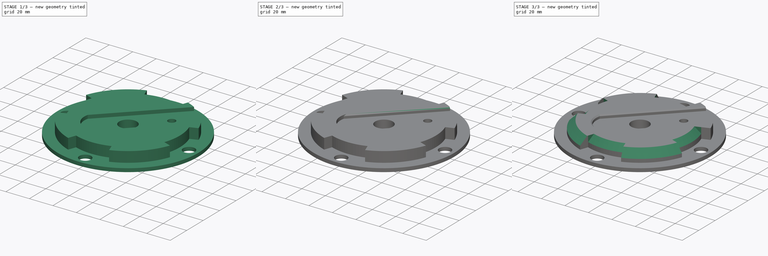
[diagram: build sequence overview — one tinted view per stage of 3, left to right]
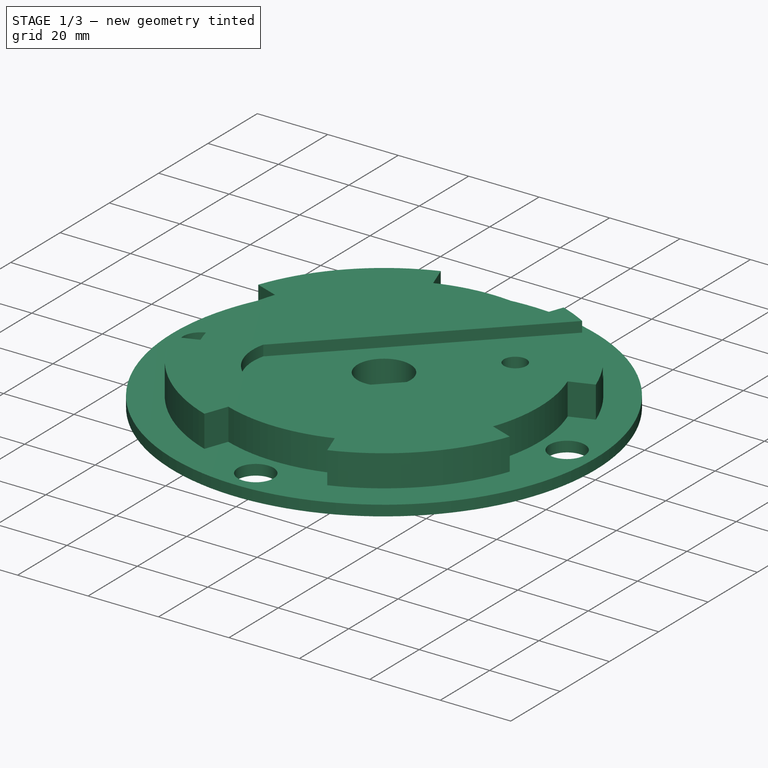
[diagram: stage 1 of 3 — iso view after this stage's code; geometry added in this stage tinted green]
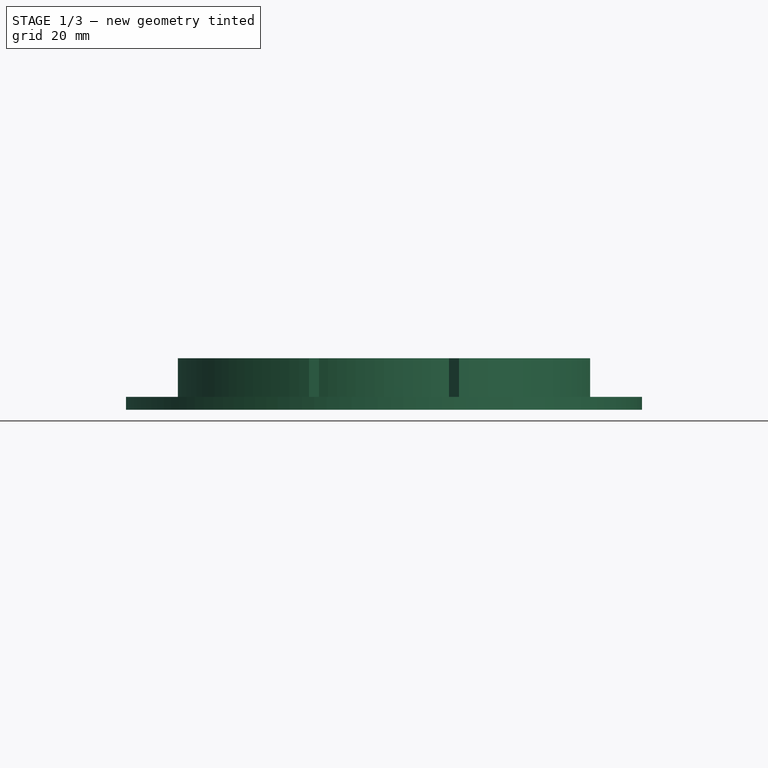
[diagram: stage 1 of 3 — front view after this stage's code; geometry added in this stage tinted green]
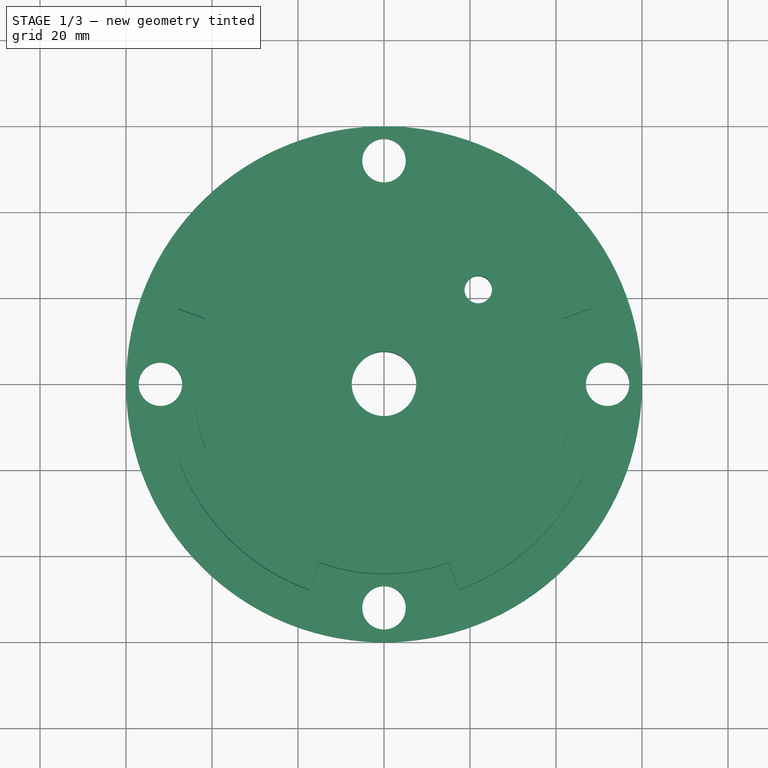
[diagram: stage 1 of 3 — top view after this stage's code; geometry added in this stage tinted green]
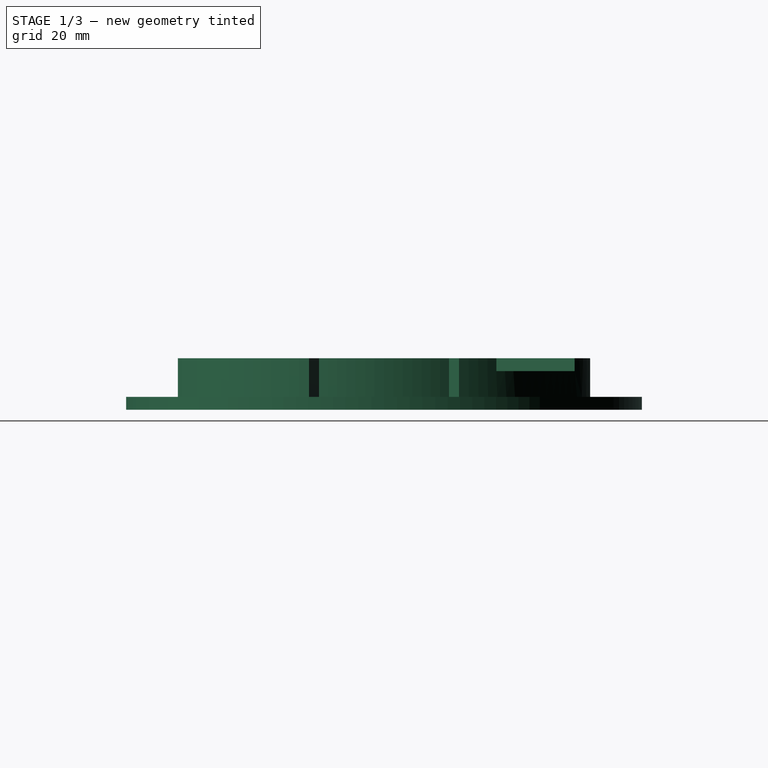
[diagram: stage 1 of 3 — right view after this stage's code; geometry added in this stage tinted green]
FCSTD DOCUMENT  (FreeCAD 0.16R)
Label: 104BCDspider_01
License: All rights reserved
LicenseURL: http://en.wikipedia.org/wiki/All_rights_reserved
objects: PartDesign::Chamfer×5, Sketcher::SketchObject×3, PartDesign::Pocket×2, PartDesign::Pad×1
note: 14 computed .brp shape members not serialized (recipe doc carries the construction recipe); baked Part::Feature solids carry a one-line shape summary decoded from their .brp

FEATURE [Sketcher::SketchObject] Sketch
  sketch-geometry (9):
    g0: Circle [constr] CenterX=0 CenterY=0 CenterZ=0 NormalX=0 NormalY=0 NormalZ=1 Radius=52
    g1: Circle CenterX=0 CenterY=0 CenterZ=0 NormalX=0 NormalY=0 NormalZ=1 Radius=7.5
    g2: Circle CenterX=21.9203 CenterY=21.9203 CenterZ=0 NormalX=0 NormalY=0 NormalZ=1 Radius=3.2
    g3: Circle CenterX=0 CenterY=0 CenterZ=0 NormalX=0 NormalY=0 NormalZ=1 Radius=60
    g4: Circle CenterX=-52 CenterY=0 CenterZ=0 NormalX=0 NormalY=0 NormalZ=1 Radius=5.05
    g5: Circle CenterX=52 CenterY=0 CenterZ=0 NormalX=0 NormalY=0 NormalZ=1 Radius=5.05
    g6: Circle CenterX=0 CenterY=52 CenterZ=0 NormalX=0 NormalY=0 NormalZ=1 Radius=5.05
    g7: Circle CenterX=0 CenterY=-52 CenterZ=0 NormalX=0 NormalY=0 NormalZ=1 Radius=5.05
    g8: LineSegment [constr] StartX=0 StartY=0 StartZ=0 EndX=60.5216 EndY=60.5216 EndZ=0
  constraints (23):
    c: Coincident(g1,g-1)
    c: Coincident(g0,g-1)
    c: Radius(g0) = 52
    c: Radius(g1) = 7.5
    c: Radius(g2) = 3.2
    c: Coincident(g3,g-1)
    c: Radius(g3) = 60
    c: PointOnObject(g5,g-1)
    c: PointOnObject(g4,g-1)
    c: PointOnObject(g7,g-2)
    c: PointOnObject(g6,g-2)
    c: Radius(g7) = 5.05
    c: Equal(g7,g6)
    c: Equal(g7,g5)
    c: Equal(g7,g4)
    c: DistanceY(g7) = -52
    c: DistanceX(g5) = 52
    c: DistanceY(g6) = 52
    c: DistanceX(g4) = -52
    c: Distance(g-1,g2) = 31
    c: Coincident(g8,g-1)
    c: Angle(g8) = 0.785398
    c: PointOnObject(g2,g8)
FEATURE [PartDesign::Pad] Pad
  Length = 12
  Length2 = 100
  Sketch = -> Sketch
  Type = 0
FEATURE [Sketcher::SketchObject] Sketch001
  Placement = pos=(0,0,12) rot=(0,0,1;0rad)
  Support = -> Pad [Face9]
  sketch-geometry (17):
    g0: ArcOfCircle CenterX=0 CenterY=0 CenterZ=0 NormalX=0 NormalY=0 NormalZ=1 Radius=44.2 StartAngle=2.79253 EndAngle=3.49066
    g1: Circle CenterX=0 CenterY=0 CenterZ=0 NormalX=0 NormalY=0 NormalZ=1 Radius=70
    g2: ArcOfCircle CenterX=0 CenterY=0 CenterZ=0 NormalX=0 NormalY=0 NormalZ=1 Radius=51 StartAngle=1.91986 EndAngle=2.79253
    g3: LineSegment StartX=15.1173 StartY=41.5344 StartZ=0 EndX=17.443 EndY=47.9243 EndZ=0
    g4: LineSegment StartX=41.5344 StartY=15.1173 StartZ=0 EndX=47.9243 EndY=17.443 EndZ=0
    g5: LineSegment StartX=41.5344 StartY=-15.1173 StartZ=0 EndX=47.9243 EndY=-17.443 EndZ=0
    g6: LineSegment StartX=15.1173 StartY=-41.5344 StartZ=0 EndX=17.443 EndY=-47.9243 EndZ=0
    g7: LineSegment StartX=-15.1173 StartY=-41.5344 StartZ=0 EndX=-17.443 EndY=-47.9243 EndZ=0
    g8: LineSegment StartX=-41.5344 StartY=-15.1173 StartZ=0 EndX=-47.9243 EndY=-17.443 EndZ=0
    g9: LineSegment StartX=-41.5344 StartY=15.1173 StartZ=0 EndX=-47.9243 EndY=17.443 EndZ=0
    g10: LineSegment StartX=-15.1173 StartY=41.5344 StartZ=0 EndX=-17.443 EndY=47.9243 EndZ=0
    g11: ArcOfCircle CenterX=0 CenterY=0 CenterZ=0 NormalX=0 NormalY=0 NormalZ=1 Radius=51 StartAngle=0.349066 EndAngle=1.22173
    g12: ArcOfCircle CenterX=0 CenterY=0 CenterZ=0 NormalX=0 NormalY=0 NormalZ=1 Radius=51 StartAngle=5.06145 EndAngle=5.93412
    g13: ArcOfCircle CenterX=0 CenterY=0 CenterZ=0 NormalX=0 NormalY=0 NormalZ=1 Radius=51 StartAngle=3.49066 EndAngle=4.36332
    g14: ArcOfCircle CenterX=0 CenterY=0 CenterZ=0 NormalX=0 NormalY=0 NormalZ=1 Radius=44.2 StartAngle=1.22173 EndAngle=1.91986
    g15: ArcOfCircle CenterX=0 CenterY=0 CenterZ=0 NormalX=0 NormalY=0 NormalZ=1 Radius=44.2 StartAngle=5.93412 EndAngle=6.63225
    g16: ArcOfCircle CenterX=0 CenterY=0 CenterZ=0 NormalX=0 NormalY=0 NormalZ=1 Radius=44.2 StartAngle=4.36332 EndAngle=5.06145
  constraints (42):
    c: Coincident(g-1,g0)
    c: Radius(g0) = 44.2
    c: Coincident(g-1,g1)
    c: Radius(g1) = 70
    c: Coincident(g2,g-1)
    c: Radius(g2) = 51
    c: Angle(g3) = 1.22173
    c: Angle(g4) = 0.349066
    c: Angle(g5) = -0.349066
    c: Angle(g6) = -1.22173
    c: Angle(g7) = -1.91986
    c: Angle(g8) = -2.79253
    c: Angle(g9) = 2.79253
    c: Angle(g10) = 1.91986
    c: Equal(g2,g11)
    c: Coincident(g2,g11)
    c: Equal(g2,g12)
    c: Coincident(g2,g12)
    c: Equal(g2,g13)
    c: Coincident(g2,g13)
    c: Equal(g0,g14)
    c: Coincident(g0,g14)
    c: Equal(g0,g15)
    c: Coincident(g0,g15)
    c: Equal(g0,g16)
    c: Coincident(g0,g16)
    c: Coincident(g10,g14)
    c: Coincident(g3,g14)
    c: Coincident(g4,g15)
    c: Coincident(g5,g15)
    c: Coincident(g6,g16)
    c: Coincident(g9,g0)
    c: Coincident(g8,g0)
    c: Coincident(g7,g16)
    c: Coincident(g3,g11)
    c: Coincident(g10,g2)
    c: Coincident(g9,g2)
    c: Coincident(g8,g13)
    c: Coincident(g7,g13)
    c: Coincident(g6,g12)
    c: Coincident(g5,g12)
    c: Coincident(g4,g11)
FEATURE [PartDesign::Pocket] Pocket
  Length = 9
  Sketch = -> Sketch001
  Type = 0
FEATURE [Sketcher::SketchObject] Sketch002
  ExternalGeometry = -> [Pocket]
  Placement = pos=(0,0,12) rot=(0,0,1;0rad)
  Support = -> Pocket [Face26]
  sketch-geometry (4):
    g0: LineSegment StartX=-10.0068 StartY=-27.6845 StartZ=0 EndX=68.1341 EndY=50.4564 EndZ=0
    g1: LineSegment StartX=68.1341 StartY=50.4564 StartZ=0 EndX=49.7499 EndY=68.8405 EndZ=0
    g2: LineSegment StartX=49.7499 StartY=68.8405 StartZ=0 EndX=-28.0318 EndY=-8.94122 EndZ=0
    g3: ArcOfCircle CenterX=-12.9629 CenterY=-12.4885 CenterZ=0 NormalX=0 NormalY=0 NormalZ=1 Radius=15.4808 StartAngle=2.9104 EndAngle=4.90452
  constraints (10):
    c: Coincident(g0,g1)
    c: Coincident(g1,g2)
    c: Parallel(g2,g0)
    c: Perpendicular(g2,g1)
    c: Distance(g2) = 110
    c: Distance(g-1,g0) = 12.5
    c: Distance(g-3,g0) = 12.5
    c: Coincident(g3,g0)
    c: Coincident(g3,g2)
    c: Distance(g-1,g3) = 18
FEATURE [PartDesign::Pocket] Pocket001
  Length = 3
  Sketch = -> Sketch002
  Type = 0
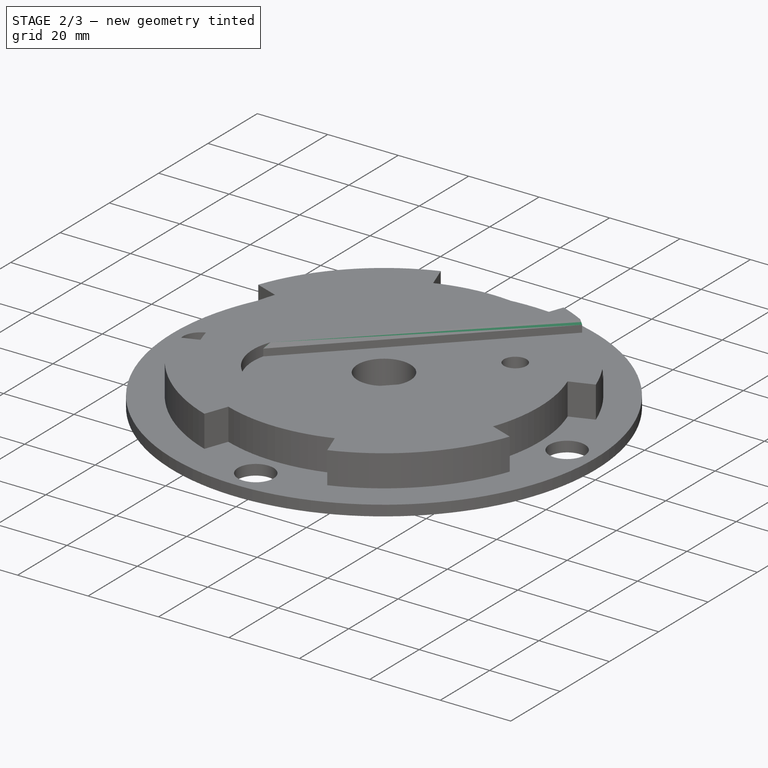
[diagram: stage 2 of 3 — iso view after this stage's code; geometry added in this stage tinted green]
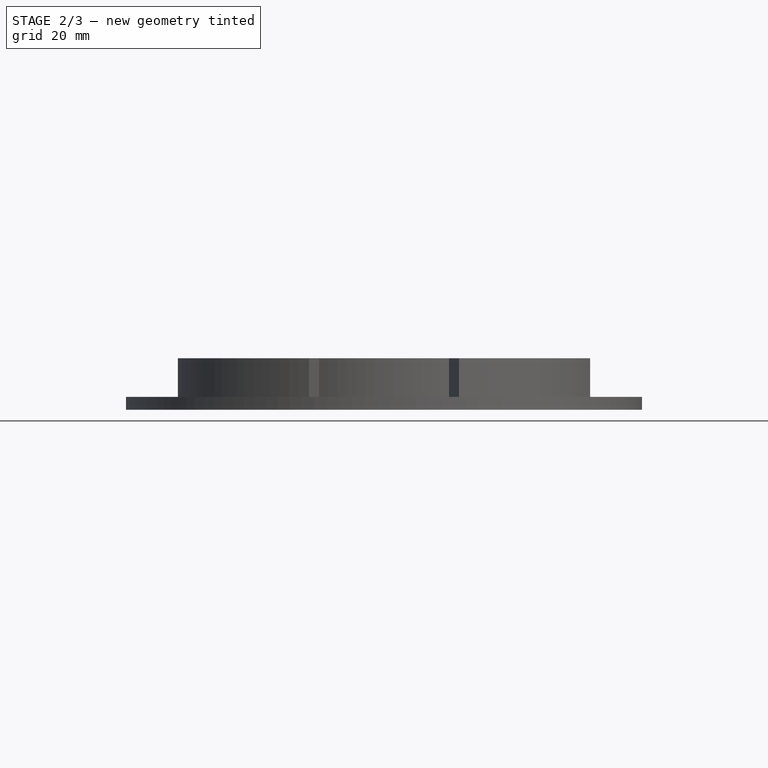
[diagram: stage 2 of 3 — front view after this stage's code; geometry added in this stage tinted green]
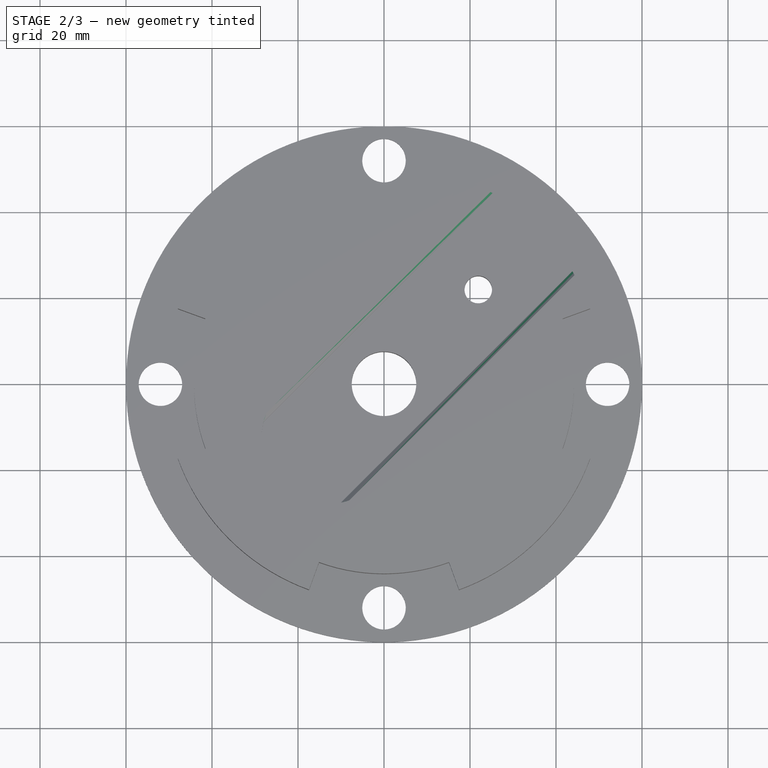
[diagram: stage 2 of 3 — top view after this stage's code; geometry added in this stage tinted green]
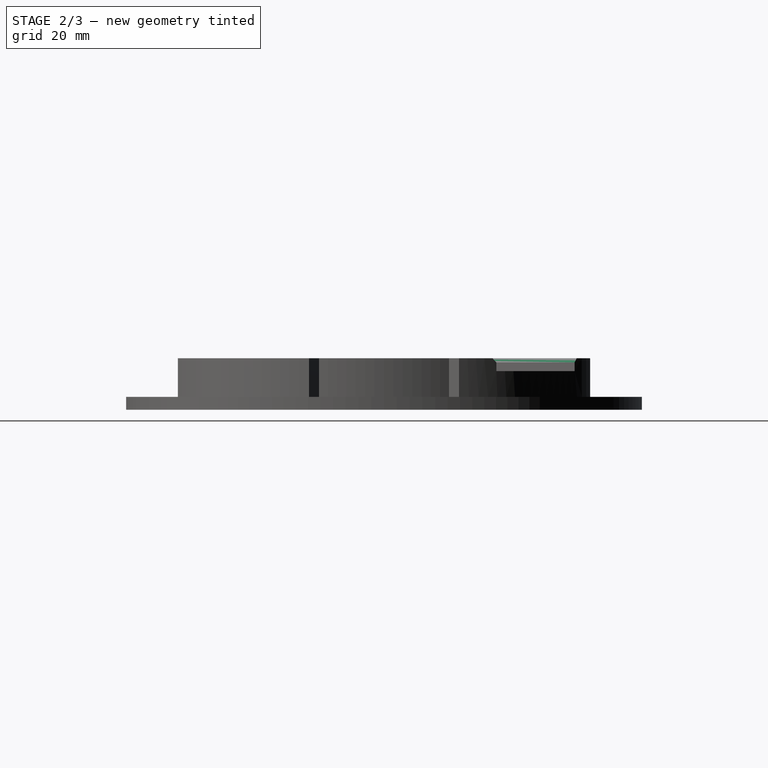
[diagram: stage 2 of 3 — right view after this stage's code; geometry added in this stage tinted green]
FEATURE [PartDesign::Chamfer] Chamfer
  Base = -> Pocket001 [Edge79]
  Size = 1
FEATURE [PartDesign::Chamfer] Chamfer001
  Base = -> Chamfer [Edge16]
  Size = 1
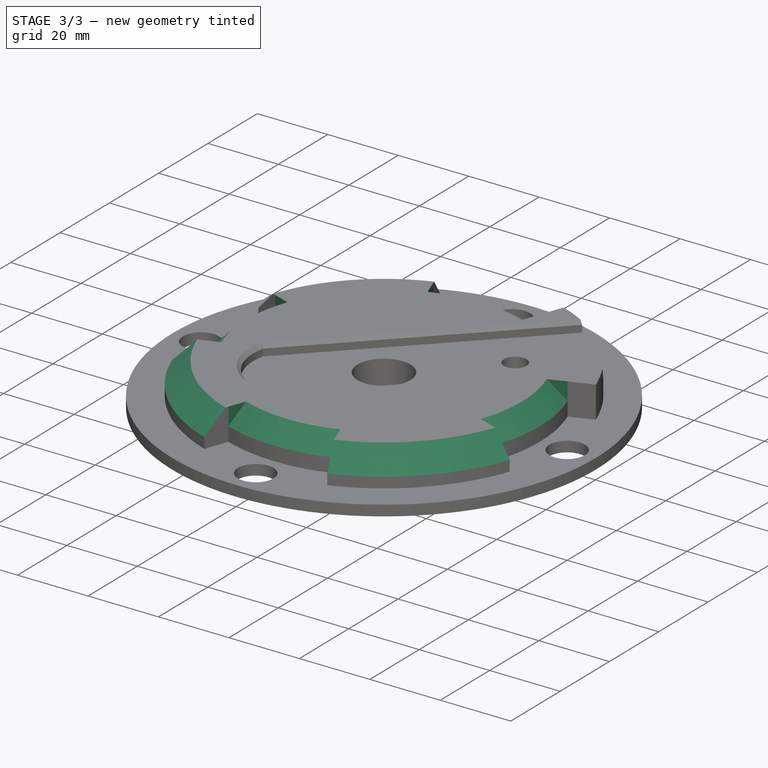
[diagram: stage 3 of 3 — iso view after this stage's code; geometry added in this stage tinted green]
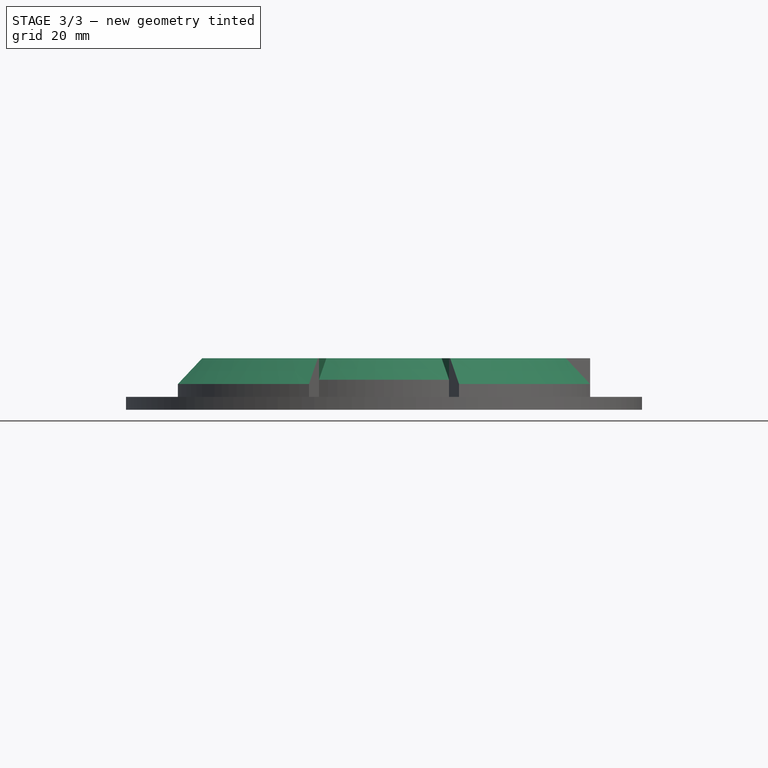
[diagram: stage 3 of 3 — front view after this stage's code; geometry added in this stage tinted green]
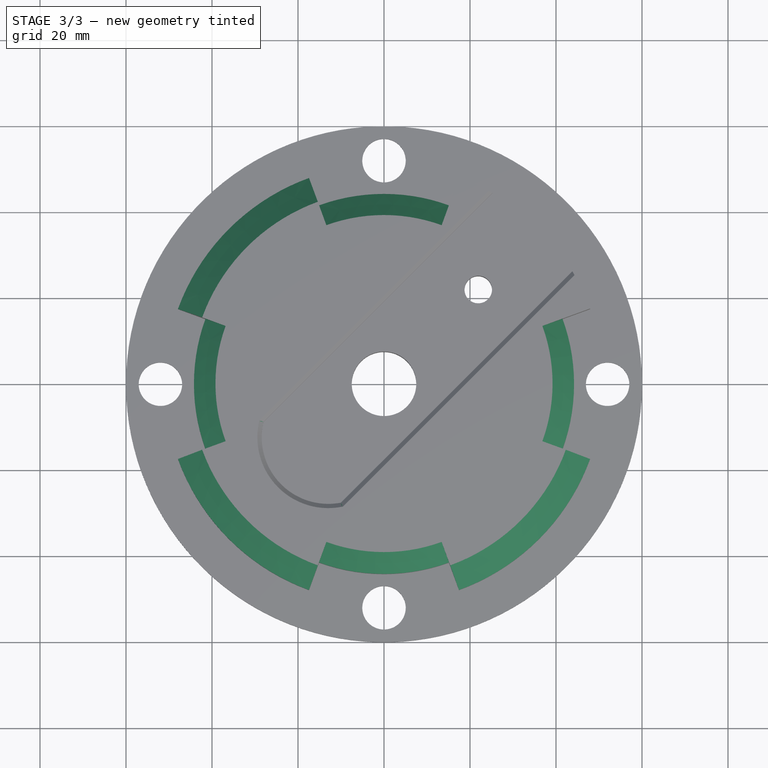
[diagram: stage 3 of 3 — top view after this stage's code; geometry added in this stage tinted green]
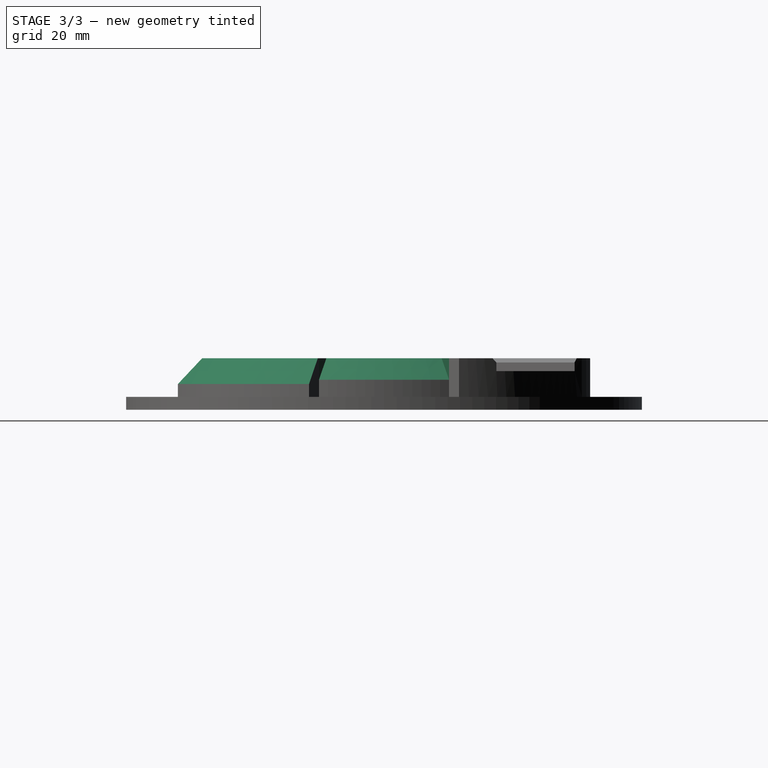
[diagram: stage 3 of 3 — right view after this stage's code; geometry added in this stage tinted green]
FEATURE [PartDesign::Chamfer] Chamfer002
  Base = -> Chamfer001 [Edge23]
  Size = 1
FEATURE [PartDesign::Chamfer] Chamfer003
  Base = -> Chamfer002 [Edge16,Edge25,Edge24]
  Size = 6
FEATURE [PartDesign::Chamfer] Chamfer004
  Base = -> Chamfer003 [Edge6,Edge14,Edge22,Edge3]
  Size = 5
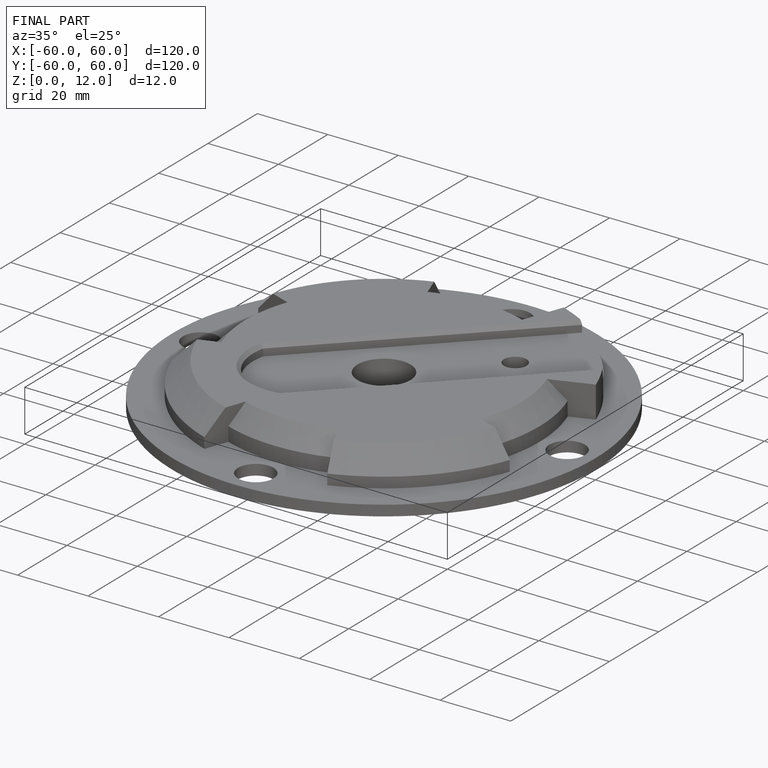
[diagram: finished part — iso view with bounding-box wireframe]
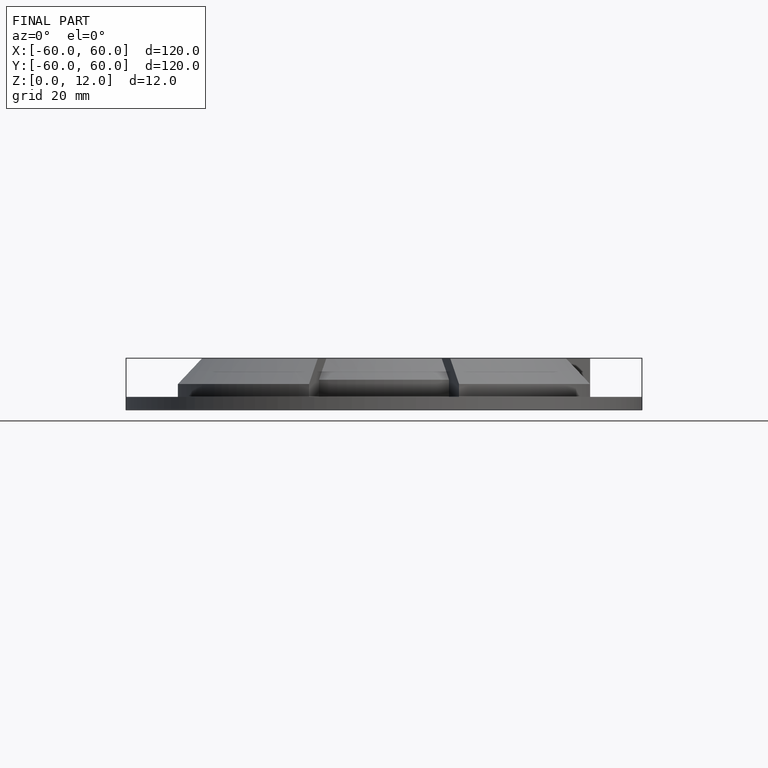
[diagram: finished part — front view with bounding-box wireframe]
